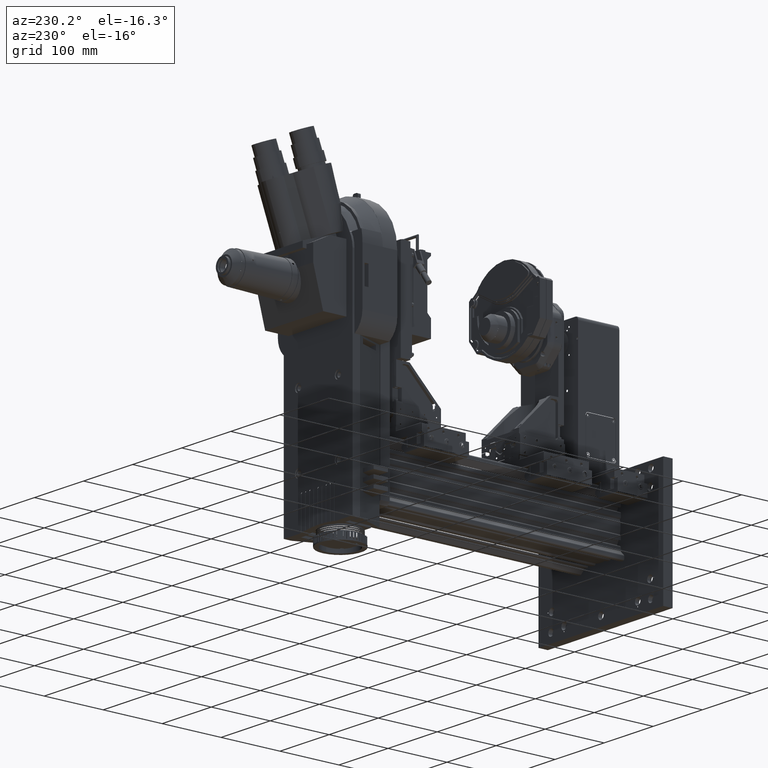
[diagram: clean part render]
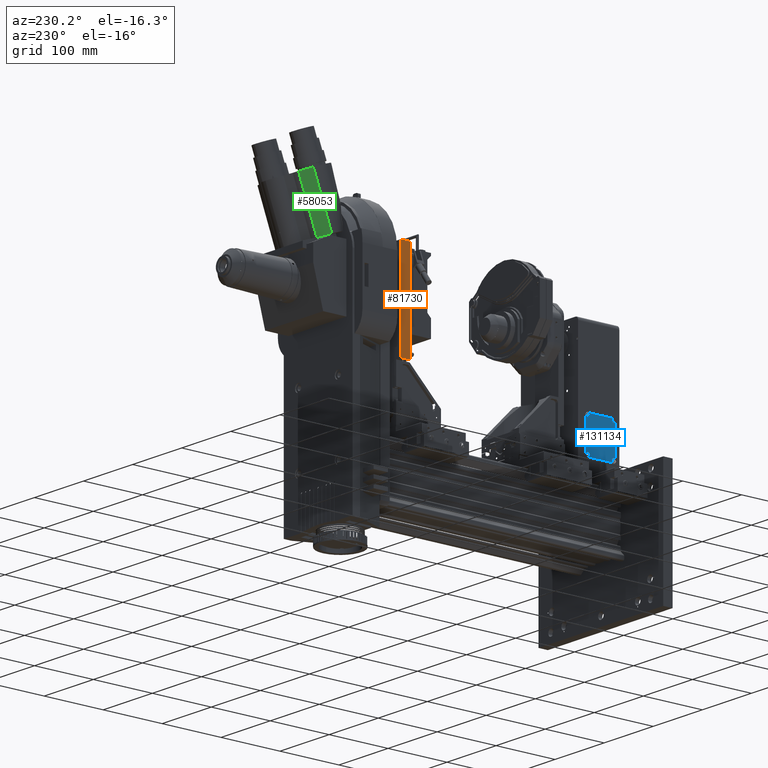
[diagram: same view with three faces highlighted in distinct colors, each labeled with its STEP entity id]
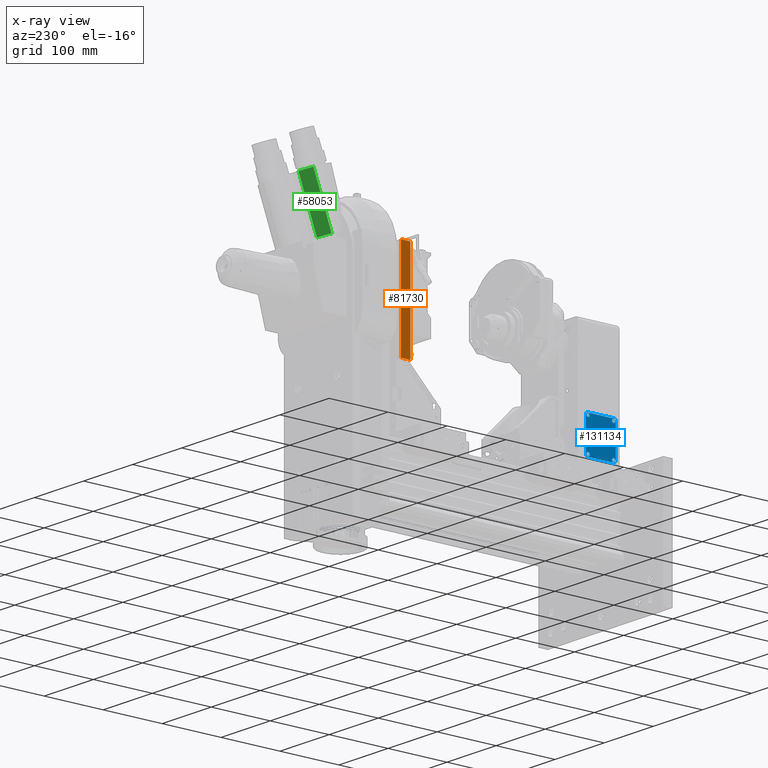
[diagram: x-ray of the same camera — body ghosted, the three highlighted faces saturated]
A machine part, auxiliary view with three faces highlighted in distinct colors.
The next image is the same camera in x-ray (body ghosted, the three faces saturated) — at least one of them is partly hidden behind the body in this view.
Their STEP definitions:

[orange] entity #81730 — the highlighted planar face has unit normal (1, 0, -0).
#2329 = EDGE_CURVE ( 'NONE', #68080, #98366, #39013, .T. ) ;
#7891 = VECTOR ( 'NONE', #79979, 1000.000000000000000 ) ;
#20811 = CARTESIAN_POINT ( 'NONE',  ( -21.17098529840854900, -20.29090327093600300, 543.9686022211731100 ) ) ;
#22130 = DIRECTION ( 'NONE',  ( 1.152958199886486700E-014, -3.922376330638170300E-018, 1.000000000000000000 ) ) ;
#32018 = VECTOR ( 'NONE', #22130, 1000.000000000000000 ) ;
#38282 = CARTESIAN_POINT ( 'NONE',  ( -21.17098529841040700, -20.29090327093605600, 382.9326022211732300 ) ) ;
#39013 = LINE ( 'NONE', #127905, #7891 ) ;
#42881 = ORIENTED_EDGE ( 'NONE', *, *, #82773, .F. ) ;
#45812 = CARTESIAN_POINT ( 'NONE',  ( -21.17098529841049600, -4.034903270936064600, 382.9326022211732300 ) ) ;
#46224 = EDGE_LOOP ( 'NONE', ( #150396, #113356, #42881, #64145 ) ) ;
#50672 = PLANE ( 'NONE',  #137329 ) ;
#51198 = CARTESIAN_POINT ( 'NONE',  ( -21.17098529840864500, -4.034903270935953600, 543.9686022211731100 ) ) ;
#51399 = CARTESIAN_POINT ( 'NONE',  ( -21.17098529840854900, -20.29090327093600300, 543.9686022211731100 ) ) ;
#57084 = CARTESIAN_POINT ( 'NONE',  ( -21.17098529840864500, -4.034903270935953600, 543.9686022211731100 ) ) ;
#62207 = VECTOR ( 'NONE', #92150, 1000.000000000000000 ) ;
#63035 = DIRECTION ( 'NONE',  ( -1.152958199886486700E-014, 3.922376330638170300E-018, -1.000000000000000000 ) ) ;
#63281 = LINE ( 'NONE', #57084, #32018 ) ;
#64145 = ORIENTED_EDGE ( 'NONE', *, *, #135180, .T. ) ;
#64368 = VERTEX_POINT ( 'NONE', #38282 ) ;
#68080 = VERTEX_POINT ( 'NONE', #125368 ) ;
#69300 = FACE_OUTER_BOUND ( 'NONE', #46224, .T. ) ;
#79979 = DIRECTION ( 'NONE',  ( 5.828670879282978200E-015, -1.000000000000000000, -3.922376330705766600E-018 ) ) ;
#81730 = ADVANCED_FACE ( 'NONE', ( #69300 ), #50672, .F. ) ;
#82773 = EDGE_CURVE ( 'NONE', #122627, #68080, #63281, .T. ) ;
#92150 = DIRECTION ( 'NONE',  ( 5.828670879282978200E-015, -1.000000000000000000, -3.922376330705766600E-018 ) ) ;
#93479 = LINE ( 'NONE', #45812, #62207 ) ;
#98366 = VERTEX_POINT ( 'NONE', #51399 ) ;
#103138 = DIRECTION ( 'NONE',  ( -1.152958199886486700E-014, 3.922376330638170300E-018, -1.000000000000000000 ) ) ;
#113356 = ORIENTED_EDGE ( 'NONE', *, *, #2329, .F. ) ;
#117864 = CARTESIAN_POINT ( 'NONE',  ( -21.17098529841049600, -4.034903270936064600, 382.9326022211732300 ) ) ;
#122627 = VERTEX_POINT ( 'NONE', #117864 ) ;
#125249 = EDGE_CURVE ( 'NONE', #98366, #64368, #141102, .T. ) ;
#125368 = CARTESIAN_POINT ( 'NONE',  ( -21.17098529840864500, -4.034903270935953600, 543.9686022211731100 ) ) ;
#127905 = CARTESIAN_POINT ( 'NONE',  ( -21.17098529840864500, -4.034903270935953600, 543.9686022211731100 ) ) ;
#133546 = DIRECTION ( 'NONE',  ( 1.000000000000000000, 5.828670879282935600E-015, -1.152958199886486700E-014 ) ) ;
#135180 = EDGE_CURVE ( 'NONE', #122627, #64368, #93479, .T. ) ;
#137329 = AXIS2_PLACEMENT_3D ( 'NONE', #51198, #133546, #63035 ) ;
#137407 = VECTOR ( 'NONE', #103138, 1000.000000000000000 ) ;
#141102 = LINE ( 'NONE', #20811, #137407 ) ;
#150396 = ORIENTED_EDGE ( 'NONE', *, *, #125249, .F. ) ;

[blue] entity #131134 — the highlighted planar face has unit normal (-1, -0, -0).
#2200 = CARTESIAN_POINT ( 'NONE',  ( -11.51898529865419000, -373.2382781207000400, 370.9280352799293000 ) ) ;
#2530 = ORIENTED_EDGE ( 'NONE', *, *, #146362, .T. ) ;
#2761 = VERTEX_POINT ( 'NONE', #105872 ) ;
#3396 = VERTEX_POINT ( 'NONE', #8258 ) ;
#4061 = CARTESIAN_POINT ( 'NONE',  ( -11.51898529865437500, -329.8042781206999600, 314.8380352799292700 ) ) ;
#4221 = CARTESIAN_POINT ( 'NONE',  ( -11.51898529865419000, -373.2382781207000400, 368.1780352799293000 ) ) ;
#4521 = CARTESIAN_POINT ( 'NONE',  ( -11.51898529865437800, -329.8042781206999600, 314.8380352799292700 ) ) ;
#4698 = DIRECTION ( 'NONE',  ( -1.000000000000000000, -4.339919533292702900E-015, -1.288248543680449600E-016 ) ) ;
#4782 = CARTESIAN_POINT ( 'NONE',  ( -11.51898529865417200, -376.7942781207000300, 314.8380352799293300 ) ) ;
#5098 = ORIENTED_EDGE ( 'NONE', *, *, #49175, .T. ) ;
#5762 = EDGE_CURVE ( 'NONE', #127668, #80224, #65521, .T. ) ;
#7391 = CARTESIAN_POINT ( 'NONE',  ( -11.51898529865419000, -373.2382781207000400, 371.7340352799293400 ) ) ;
#8258 = CARTESIAN_POINT ( 'NONE',  ( -11.51898529865437500, -329.8042781206999600, 311.2820352799292300 ) ) ;
#8316 = DIRECTION ( 'NONE',  ( 0.0000000000000000000, 0.0000000000000000000, -1.000000000000000000 ) ) ;
#9640 = VECTOR ( 'NONE', #70531, 1000.000000000000000 ) ;
#15139 = CARTESIAN_POINT ( 'NONE',  ( -11.51898529865417400, -376.7942781206999700, 368.1780352799293000 ) ) ;
#15752 = DIRECTION ( 'NONE',  ( 0.0000000000000000000, 0.0000000000000000000, -1.000000000000000000 ) ) ;
#15853 = CARTESIAN_POINT ( 'NONE',  ( -11.51898529865437500, -329.8042781206999600, 311.2820352799292300 ) ) ;
#15917 = DIRECTION ( 'NONE',  ( 0.0000000000000000000, 0.0000000000000000000, -1.000000000000000000 ) ) ;
#16236 = DIRECTION ( 'NONE',  ( 0.0000000000000000000, 0.0000000000000000000, -1.000000000000000000 ) ) ;
#19570 = DIRECTION ( 'NONE',  ( -1.000000000000000000, -4.339919533292702900E-015, -1.288248543680449600E-016 ) ) ;
#20024 = EDGE_CURVE ( 'NONE', #98624, #2761, #39557, .T. ) ;
#21532 = ORIENTED_EDGE ( 'NONE', *, *, #112324, .T. ) ;
#24303 = VERTEX_POINT ( 'NONE', #75045 ) ;
#26687 = EDGE_CURVE ( 'NONE', #97162, #148495, #73277, .T. ) ;
#28121 = ORIENTED_EDGE ( 'NONE', *, *, #36282, .T. ) ;
#28170 = ORIENTED_EDGE ( 'NONE', *, *, #74744, .F. ) ;
#29452 = CARTESIAN_POINT ( 'NONE',  ( -11.51898529865417200, -376.7942781207000300, 314.8380352799293300 ) ) ;
#29583 = ORIENTED_EDGE ( 'NONE', *, *, #101437, .T. ) ;
#30132 = CARTESIAN_POINT ( 'NONE',  ( -11.51898529865418800, -373.2382781207000400, 314.8380352799293300 ) ) ;
#31095 = CIRCLE ( 'NONE', #122707, 3.556000000000003600 ) ;
#31510 = EDGE_CURVE ( 'NONE', #24303, #34049, #91720, .T. ) ;
#34049 = VERTEX_POINT ( 'NONE', #2200 ) ;
#35146 = CARTESIAN_POINT ( 'NONE',  ( -11.51898529865418700, -373.2382781207000400, 314.8380352799293300 ) ) ;
#35859 = LINE ( 'NONE', #15853, #98449 ) ;
#36282 = EDGE_CURVE ( 'NONE', #3396, #70332, #35859, .T. ) ;
#37225 = DIRECTION ( 'NONE',  ( 0.0000000000000000000, 0.0000000000000000000, -1.000000000000000000 ) ) ;
#39557 = CIRCLE ( 'NONE', #113821, 2.749999999999974700 ) ;
#41505 = VERTEX_POINT ( 'NONE', #100293 ) ;
#41903 = DIRECTION ( 'NONE',  ( 0.0000000000000000000, 0.0000000000000000000, -1.000000000000000000 ) ) ;
#45968 = AXIS2_PLACEMENT_3D ( 'NONE', #35146, #117543, #46972 ) ;
#46972 = DIRECTION ( 'NONE',  ( 5.211435889046135800E-017, -3.469446951953612700E-016, -1.000000000000000000 ) ) ;
#47313 = AXIS2_PLACEMENT_3D ( 'NONE', #149356, #78717, #8316 ) ;
#47949 = CARTESIAN_POINT ( 'NONE',  ( -11.51898529865437800, -329.8042781206999600, 317.5880352799292700 ) ) ;
#49175 = EDGE_CURVE ( 'NONE', #70332, #127668, #128912, .T. ) ;
#50535 = DIRECTION ( 'NONE',  ( -1.000000000000000000, -4.339919533292702900E-015, -1.288248543680449600E-016 ) ) ;
#50742 = FACE_OUTER_BOUND ( 'NONE', #111306, .T. ) ;
#52828 = ORIENTED_EDGE ( 'NONE', *, *, #142654, .F. ) ;
#53135 = ORIENTED_EDGE ( 'NONE', *, *, #65219, .F. ) ;
#53296 = EDGE_LOOP ( 'NONE', ( #28170, #53135 ) ) ;
#54355 = CIRCLE ( 'NONE', #47313, 2.749999999999974700 ) ;
#54967 = CARTESIAN_POINT ( 'NONE',  ( -11.51898529865438000, -329.8042781206999600, 370.9280352799293000 ) ) ;
#55063 = CARTESIAN_POINT ( 'NONE',  ( -11.51898529865437800, -329.8042781206999600, 368.1780352799293000 ) ) ;
#55620 = LINE ( 'NONE', #117450, #9640 ) ;
#55660 = AXIS2_PLACEMENT_3D ( 'NONE', #90032, #19570, #101865 ) ;
#55926 = CARTESIAN_POINT ( 'NONE',  ( -11.51898529865418800, -373.2382781207000400, 314.8380352799293300 ) ) ;
#59510 = DIRECTION ( 'NONE',  ( -1.000000000000000000, -4.339919533292702900E-015, -1.288248543680449600E-016 ) ) ;
#62492 = ORIENTED_EDGE ( 'NONE', *, *, #31510, .F. ) ;
#65219 = EDGE_CURVE ( 'NONE', #67142, #137668, #111460, .T. ) ;
#65521 = LINE ( 'NONE', #4782, #69212 ) ;
#65570 = CARTESIAN_POINT ( 'NONE',  ( -11.51898529865419000, -373.2382781207000400, 371.7340352799293400 ) ) ;
#66854 = DIRECTION ( 'NONE',  ( 0.0000000000000000000, 0.0000000000000000000, -1.000000000000000000 ) ) ;
#67142 = VERTEX_POINT ( 'NONE', #132929 ) ;
#67737 = DIRECTION ( 'NONE',  ( 0.0000000000000000000, 0.0000000000000000000, -1.000000000000000000 ) ) ;
#69212 = VECTOR ( 'NONE', #146204, 1000.000000000000000 ) ;
#69555 = CIRCLE ( 'NONE', #123221, 2.750000000000030200 ) ;
#69626 = AXIS2_PLACEMENT_3D ( 'NONE', #121123, #50535, #132913 ) ;
#70332 = VERTEX_POINT ( 'NONE', #138399 ) ;
#70531 = DIRECTION ( 'NONE',  ( 5.211435889046305900E-017, -7.392413192855416100E-016, -1.000000000000000000 ) ) ;
#72698 = CARTESIAN_POINT ( 'NONE',  ( -11.51898529865437800, -329.8042781206999600, 312.0880352799292200 ) ) ;
#73277 = LINE ( 'NONE', #7391, #128622 ) ;
#74386 = CIRCLE ( 'NONE', #136225, 3.556000000000003600 ) ;
#74465 = CARTESIAN_POINT ( 'NONE',  ( -11.51898529865437800, -329.8042781206999600, 371.7340352799293400 ) ) ;
#74744 = EDGE_CURVE ( 'NONE', #137668, #67142, #130917, .T. ) ;
#75038 = CARTESIAN_POINT ( 'NONE',  ( -11.51898529865418700, -373.2382781207000400, 314.8380352799293300 ) ) ;
#75045 = CARTESIAN_POINT ( 'NONE',  ( -11.51898529865419000, -373.2382781207000400, 365.4280352799293600 ) ) ;
#75405 = AXIS2_PLACEMENT_3D ( 'NONE', #30132, #112503, #41903 ) ;
#76007 = AXIS2_PLACEMENT_3D ( 'NONE', #4521, #86649, #16236 ) ;
#77824 = CIRCLE ( 'NONE', #76007, 2.750000000000030200 ) ;
#78717 = DIRECTION ( 'NONE',  ( -1.000000000000000000, -4.339919533292702900E-015, -1.288248543680449600E-016 ) ) ;
#80224 = VERTEX_POINT ( 'NONE', #15139 ) ;
#82041 = FACE_BOUND ( 'NONE', #53296, .T. ) ;
#84527 = EDGE_CURVE ( 'NONE', #80224, #97162, #111947, .T. ) ;
#86182 = DIRECTION ( 'NONE',  ( -1.000000000000000000, -4.339919533292702900E-015, -1.288248543680449600E-016 ) ) ;
#86349 = DIRECTION ( 'NONE',  ( -1.000000000000000000, -4.339919533292702900E-015, -1.288248543680449600E-016 ) ) ;
#86649 = DIRECTION ( 'NONE',  ( -1.000000000000000000, -4.339919533292702900E-015, -1.288248543680449600E-016 ) ) ;
#86802 = DIRECTION ( 'NONE',  ( 0.0000000000000000000, 0.0000000000000000000, -1.000000000000000000 ) ) ;
#89980 = CARTESIAN_POINT ( 'NONE',  ( -11.51898529865418800, -373.2382781207000400, 312.0880352799292700 ) ) ;
#90032 = CARTESIAN_POINT ( 'NONE',  ( -11.51898529865418800, -373.2382781207000400, 368.1780352799293000 ) ) ;
#91720 = CIRCLE ( 'NONE', #102236, 2.749999999999974700 ) ;
#93045 = AXIS2_PLACEMENT_3D ( 'NONE', #55926, #138351, #67737 ) ;
#93902 = EDGE_LOOP ( 'NONE', ( #62492, #52828 ) ) ;
#96428 = ORIENTED_EDGE ( 'NONE', *, *, #143574, .F. ) ;
#97162 = VERTEX_POINT ( 'NONE', #65570 ) ;
#98064 = DIRECTION ( 'NONE',  ( 4.340174603397985600E-015, -1.000000000000000000, 7.219702316505089500E-016 ) ) ;
#98449 = VECTOR ( 'NONE', #98064, 1000.000000000000000 ) ;
#98624 = VERTEX_POINT ( 'NONE', #54967 ) ;
#100293 = CARTESIAN_POINT ( 'NONE',  ( -11.51898529865439400, -326.2482781206999800, 368.1780352799293000 ) ) ;
#101437 = EDGE_CURVE ( 'NONE', #41505, #104524, #55620, .T. ) ;
#101865 = DIRECTION ( 'NONE',  ( 0.0000000000000000000, 0.0000000000000000000, -1.000000000000000000 ) ) ;
#102236 = AXIS2_PLACEMENT_3D ( 'NONE', #4221, #86349, #15917 ) ;
#104524 = VERTEX_POINT ( 'NONE', #144687 ) ;
#105872 = CARTESIAN_POINT ( 'NONE',  ( -11.51898529865438000, -329.8042781206999600, 365.4280352799293600 ) ) ;
#107814 = CARTESIAN_POINT ( 'NONE',  ( -11.51898529865438000, -329.8042781206999600, 368.1780352799293000 ) ) ;
#111057 = VERTEX_POINT ( 'NONE', #47949 ) ;
#111306 = EDGE_LOOP ( 'NONE', ( #5098, #132296, #148788, #117478, #2530, #29583, #21532, #28121 ) ) ;
#111460 = CIRCLE ( 'NONE', #75405, 2.750000000000030200 ) ;
#111947 = CIRCLE ( 'NONE', #55660, 3.556000000000003600 ) ;
#112324 = EDGE_CURVE ( 'NONE', #104524, #3396, #31095, .T. ) ;
#112503 = DIRECTION ( 'NONE',  ( -1.000000000000000000, -4.339919533292702900E-015, -1.288248543680449600E-016 ) ) ;
#113315 = DIRECTION ( 'NONE',  ( -4.340174603397985600E-015, 1.000000000000000000, -8.543766733729101900E-017 ) ) ;
#113416 = FACE_BOUND ( 'NONE', #93902, .T. ) ;
#113821 = AXIS2_PLACEMENT_3D ( 'NONE', #107814, #119694, #37225 ) ;
#115963 = EDGE_LOOP ( 'NONE', ( #136186, #96428 ) ) ;
#117089 = FACE_BOUND ( 'NONE', #115963, .T. ) ;
#117450 = CARTESIAN_POINT ( 'NONE',  ( -11.51898529865439400, -326.2482781206999800, 368.1780352799292500 ) ) ;
#117478 = ORIENTED_EDGE ( 'NONE', *, *, #26687, .T. ) ;
#117543 = DIRECTION ( 'NONE',  ( -1.000000000000000000, -4.339919533292702900E-015, -5.211435889045985400E-017 ) ) ;
#119694 = DIRECTION ( 'NONE',  ( -1.000000000000000000, -4.339919533292702900E-015, -1.288248543680449600E-016 ) ) ;
#121123 = CARTESIAN_POINT ( 'NONE',  ( -11.51898529865438000, -329.8042781206999600, 368.1780352799293000 ) ) ;
#122707 = AXIS2_PLACEMENT_3D ( 'NONE', #4061, #86182, #15752 ) ;
#123221 = AXIS2_PLACEMENT_3D ( 'NONE', #130034, #59510, #141930 ) ;
#124693 = EDGE_CURVE ( 'NONE', #125423, #111057, #69555, .T. ) ;
#125423 = VERTEX_POINT ( 'NONE', #72698 ) ;
#127584 = EDGE_CURVE ( 'NONE', #2761, #98624, #147380, .T. ) ;
#127668 = VERTEX_POINT ( 'NONE', #29452 ) ;
#128622 = VECTOR ( 'NONE', #113315, 1000.000000000000000 ) ;
#128912 = CIRCLE ( 'NONE', #144556, 3.556000000000003600 ) ;
#130034 = CARTESIAN_POINT ( 'NONE',  ( -11.51898529865437800, -329.8042781206999600, 314.8380352799292700 ) ) ;
#130917 = CIRCLE ( 'NONE', #93045, 2.750000000000030200 ) ;
#131134 = ADVANCED_FACE ( 'NONE', ( #113416, #144753, #117089, #82041, #50742 ), #152152, .T. ) ;
#132296 = ORIENTED_EDGE ( 'NONE', *, *, #5762, .T. ) ;
#132913 = DIRECTION ( 'NONE',  ( 0.0000000000000000000, 0.0000000000000000000, -1.000000000000000000 ) ) ;
#132929 = CARTESIAN_POINT ( 'NONE',  ( -11.51898529865418800, -373.2382781207000400, 317.5880352799293300 ) ) ;
#134434 = ORIENTED_EDGE ( 'NONE', *, *, #127584, .F. ) ;
#136141 = ORIENTED_EDGE ( 'NONE', *, *, #20024, .F. ) ;
#136186 = ORIENTED_EDGE ( 'NONE', *, *, #124693, .F. ) ;
#136225 = AXIS2_PLACEMENT_3D ( 'NONE', #55063, #137444, #66854 ) ;
#137444 = DIRECTION ( 'NONE',  ( -1.000000000000000000, -4.339919533292702900E-015, -1.288248543680449600E-016 ) ) ;
#137668 = VERTEX_POINT ( 'NONE', #89980 ) ;
#138351 = DIRECTION ( 'NONE',  ( -1.000000000000000000, -4.339919533292702900E-015, -1.288248543680449600E-016 ) ) ;
#138399 = CARTESIAN_POINT ( 'NONE',  ( -11.51898529865418700, -373.2382781207000400, 311.2820352799292900 ) ) ;
#141930 = DIRECTION ( 'NONE',  ( 0.0000000000000000000, 0.0000000000000000000, -1.000000000000000000 ) ) ;
#142654 = EDGE_CURVE ( 'NONE', #34049, #24303, #54355, .T. ) ;
#143574 = EDGE_CURVE ( 'NONE', #111057, #125423, #77824, .T. ) ;
#144556 = AXIS2_PLACEMENT_3D ( 'NONE', #75038, #4698, #86802 ) ;
#144687 = CARTESIAN_POINT ( 'NONE',  ( -11.51898529865439100, -326.2482781206999800, 314.8380352799292700 ) ) ;
#144753 = FACE_BOUND ( 'NONE', #152588, .T. ) ;
#146204 = DIRECTION ( 'NONE',  ( -5.211435889046248500E-017, 6.071206945919578200E-016, 1.000000000000000000 ) ) ;
#146362 = EDGE_CURVE ( 'NONE', #148495, #41505, #74386, .T. ) ;
#147380 = CIRCLE ( 'NONE', #69626, 2.749999999999974700 ) ;
#148495 = VERTEX_POINT ( 'NONE', #74465 ) ;
#148788 = ORIENTED_EDGE ( 'NONE', *, *, #84527, .T. ) ;
#149356 = CARTESIAN_POINT ( 'NONE',  ( -11.51898529865419000, -373.2382781207000400, 368.1780352799293000 ) ) ;
#152152 = PLANE ( 'NONE',  #45968 ) ;
#152588 = EDGE_LOOP ( 'NONE', ( #134434, #136141 ) ) ;

[green] entity #58053 — the highlighted planar face has unit normal (-0.5705, 0.7707, -0.2838).
#1429 = CARTESIAN_POINT ( 'NONE',  ( -18.93565412815815900, 128.2385982353441100, 523.6566197628930000 ) ) ;
#3660 = DIRECTION ( 'NONE',  ( -0.5705394174237784500, 0.7706814314977819000, -0.2837867232804684400 ) ) ;
#3664 = CARTESIAN_POINT ( 'NONE',  ( -30.32803971226967500, 151.9696672534776100, 611.0070743209618100 ) ) ;
#6541 = CARTESIAN_POINT ( 'NONE',  ( -13.41233460725194100, 162.9972037911724700, 606.9464231465741500 ) ) ;
#7579 = ORIENTED_EDGE ( 'NONE', *, *, #136975, .T. ) ;
#8204 = VECTOR ( 'NONE', #117365, 1000.000000000000200 ) ;
#12433 = VERTEX_POINT ( 'NONE', #141903 ) ;
#14209 = ORIENTED_EDGE ( 'NONE', *, *, #131780, .F. ) ;
#19234 = ORIENTED_EDGE ( 'NONE', *, *, #33240, .F. ) ;
#22221 = CARTESIAN_POINT ( 'NONE',  ( -9.467776141173404300, 165.5687053833143000, 605.9995234537572100 ) ) ;
#23155 = CARTESIAN_POINT ( 'NONE',  ( -30.32803971227728100, 127.0757940593428000, 543.4026226151122500 ) ) ;
#25606 = FACE_OUTER_BOUND ( 'NONE', #100182, .T. ) ;
#26186 = CARTESIAN_POINT ( 'NONE',  ( -9.467776141182952200, 134.4108133329480100, 521.3838354108315800 ) ) ;
#26641 = PLANE ( 'NONE',  #121166 ) ;
#29587 = VECTOR ( 'NONE', #96591, 999.9999999999998900 ) ;
#33240 = EDGE_CURVE ( 'NONE', #129034, #123333, #146248, .T. ) ;
#49631 = EDGE_CURVE ( 'NONE', #90168, #51747, #147770, .T. ) ;
#51747 = VERTEX_POINT ( 'NONE', #6541 ) ;
#57408 = VECTOR ( 'NONE', #92658, 999.9999999999998900 ) ;
#58053 = ADVANCED_FACE ( 'NONE', ( #25606 ), #26641, .T. ) ;
#58277 = VECTOR ( 'NONE', #85781, 1000.000000000000100 ) ;
#66464 = DIRECTION ( 'NONE',  ( -1.058142473774176300E-013, -0.3455461023662669300, -0.9384017749021372800 ) ) ;
#68779 = EDGE_CURVE ( 'NONE', #90168, #12433, #148634, .T. ) ;
#73950 = CARTESIAN_POINT ( 'NONE',  ( -9.467776141173404300, 165.5687053833143000, 605.9995234537572100 ) ) ;
#74351 = EDGE_CURVE ( 'NONE', #128508, #129034, #123608, .T. ) ;
#78328 = CARTESIAN_POINT ( 'NONE',  ( -13.41233460726148900, 131.8393117408062100, 522.3307351036485200 ) ) ;
#80239 = ORIENTED_EDGE ( 'NONE', *, *, #49631, .T. ) ;
#83492 = VECTOR ( 'NONE', #126895, 999.9999999999998900 ) ;
#85777 = DIRECTION ( 'NONE',  ( -0.8037246194103733200, -0.5950014589508589900, 9.051181020891452600E-014 ) ) ;
#85781 = DIRECTION ( 'NONE',  ( -1.058508794252436600E-013, -0.3455461023662668200, -0.9384017749021372800 ) ) ;
#90168 = VERTEX_POINT ( 'NONE', #106086 ) ;
#92658 = DIRECTION ( 'NONE',  ( 0.8212702193344987300, 0.5353952019620750200, -0.1971476719371889900 ) ) ;
#96422 = CARTESIAN_POINT ( 'NONE',  ( -13.41233460726148900, 131.8393117408062100, 522.3307351036485200 ) ) ;
#96591 = DIRECTION ( 'NONE',  ( 0.8212702193344987300, 0.5353952019620750200, -0.1971476719371889900 ) ) ;
#98983 = ORIENTED_EDGE ( 'NONE', *, *, #68779, .F. ) ;
#100182 = EDGE_LOOP ( 'NONE', ( #80239, #7579, #19234, #118559, #14209, #98983 ) ) ;
#106086 = CARTESIAN_POINT ( 'NONE',  ( -30.32803971226970300, 151.9696672534776100, 611.0070743209619200 ) ) ;
#117365 = DIRECTION ( 'NONE',  ( -1.035542314122740100E-013, -0.3455461023662638700, -0.9384017749021382700 ) ) ;
#118559 = ORIENTED_EDGE ( 'NONE', *, *, #74351, .F. ) ;
#120308 = VECTOR ( 'NONE', #66464, 999.9999999999998900 ) ;
#121166 = AXIS2_PLACEMENT_3D ( 'NONE', #73950, #3660, #85777 ) ;
#123333 = VERTEX_POINT ( 'NONE', #96422 ) ;
#123608 = LINE ( 'NONE', #26186, #29587 ) ;
#126895 = DIRECTION ( 'NONE',  ( 0.8212702193344987300, 0.5353952019620750200, -0.1971476719371889900 ) ) ;
#128508 = VERTEX_POINT ( 'NONE', #144024 ) ;
#129034 = VERTEX_POINT ( 'NONE', #1429 ) ;
#131780 = EDGE_CURVE ( 'NONE', #12433, #128508, #133335, .T. ) ;
#133335 = LINE ( 'NONE', #23155, #8204 ) ;
#136975 = EDGE_CURVE ( 'NONE', #51747, #123333, #151709, .T. ) ;
#138678 = CARTESIAN_POINT ( 'NONE',  ( -9.467776141182952200, 134.4108133329480100, 521.3838354108315800 ) ) ;
#141903 = CARTESIAN_POINT ( 'NONE',  ( -30.32803971227539100, 133.3398129155742400, 560.4138589521883200 ) ) ;
#144024 = CARTESIAN_POINT ( 'NONE',  ( -30.32803971227924900, 120.8117752031113200, 526.3913862780361800 ) ) ;
#146248 = LINE ( 'NONE', #138678, #83492 ) ;
#147770 = LINE ( 'NONE', #22221, #57408 ) ;
#148634 = LINE ( 'NONE', #3664, #58277 ) ;
#151709 = LINE ( 'NONE', #78328, #120308 ) ;